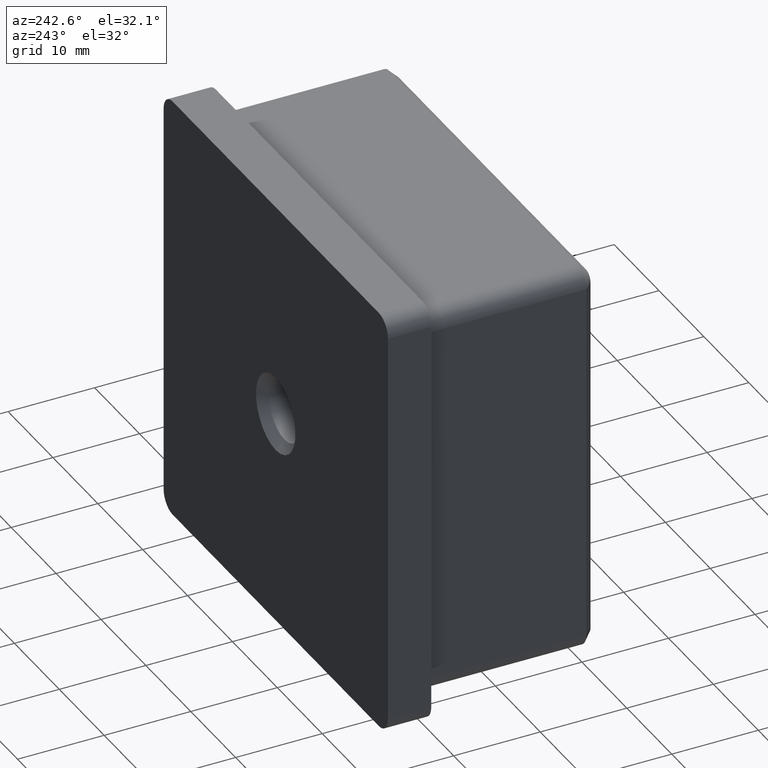
[diagram: clean part render]
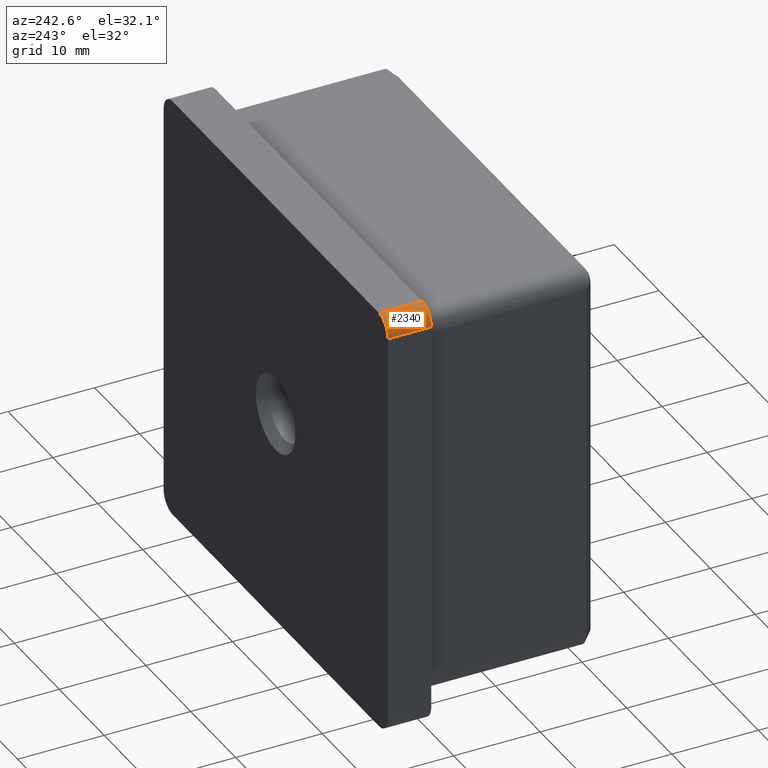
[diagram: same view with one face highlighted and labeled with its STEP entity id]
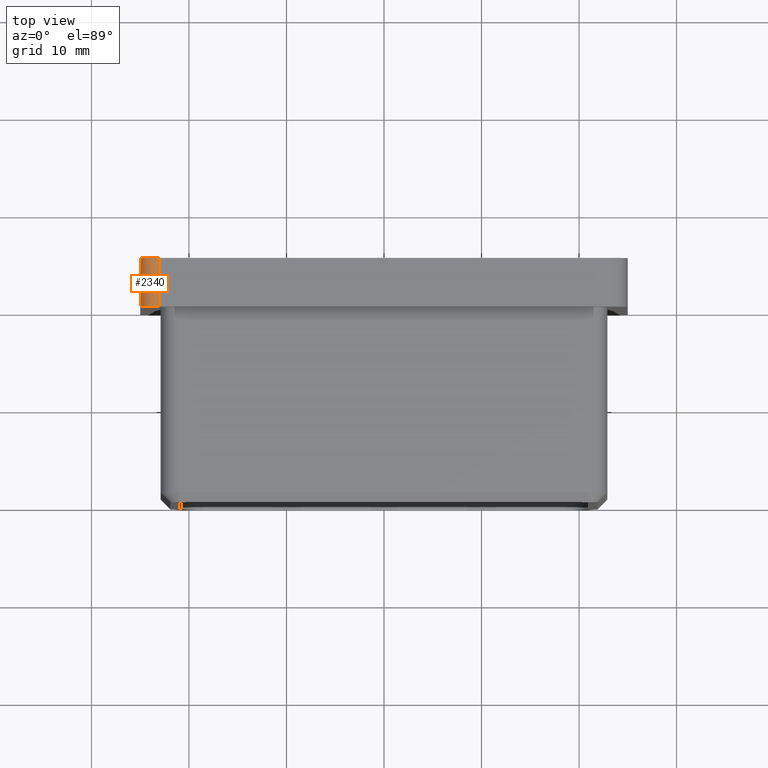
[diagram: same view with one face highlighted and labeled with its STEP entity id]
A machine part, auxiliary view. The second image highlights one B-rep face of the part: STEP entity #2340.
A second angle (top view) of the same face is appended — the face is thin or edge-on in the first view.
In plain terms, the highlighted cylindrical surface (edge-blend (fillet) strip) has radius 2 mm, axis along (0, -1, 0).
Its self-contained STEP definition (entity closure, byte-faithful):
#283 = VECTOR ( 'NONE', #14635, 1000.000000000000000 ) ;
#663 = DIRECTION ( 'NONE',  ( 0.0000000000000000000, 0.0000000000000000000, -1.000000000000000000 ) ) ;
#969 = CARTESIAN_POINT ( 'NONE',  ( -22.99999999999999300, 5.000000000000000000, 24.99999999999998600 ) ) ;
#1356 = LINE ( 'NONE', #3809, #283 ) ;
#1407 = LINE ( 'NONE', #969, #15656 ) ;
#1687 = VERTEX_POINT ( 'NONE', #16149 ) ;
#1812 = EDGE_CURVE ( 'NONE', #3569, #1687, #5575, .T. ) ;
#1892 = VERTEX_POINT ( 'NONE', #11486 ) ;
#2340 = ADVANCED_FACE ( 'NONE', ( #17377 ), #10914, .T. ) ;
#2434 = ORIENTED_EDGE ( 'NONE', *, *, #8356, .F. ) ;
#2583 = EDGE_CURVE ( 'NONE', #1687, #17779, #1407, .T. ) ;
#2933 = DIRECTION ( 'NONE',  ( 0.0000000000000000000, 1.000000000000000000, 0.0000000000000000000 ) ) ;
#3082 = ORIENTED_EDGE ( 'NONE', *, *, #2583, .F. ) ;
#3569 = VERTEX_POINT ( 'NONE', #4045 ) ;
#3809 = CARTESIAN_POINT ( 'NONE',  ( -24.99999999999998900, 5.000000000000000000, 22.99999999999998600 ) ) ;
#4045 = CARTESIAN_POINT ( 'NONE',  ( -24.99999999999998900, 5.000000000000000000, 22.99999999999998600 ) ) ;
#4050 = DIRECTION ( 'NONE',  ( -0.0000000000000000000, -1.000000000000000000, -0.0000000000000000000 ) ) ;
#4684 = EDGE_CURVE ( 'NONE', #17779, #1892, #7187, .T. ) ;
#5303 = CARTESIAN_POINT ( 'NONE',  ( -22.99999999999999300, 0.0000000000000000000, 22.99999999999998600 ) ) ;
#5420 = DIRECTION ( 'NONE',  ( 0.0000000000000000000, 0.0000000000000000000, 1.000000000000000000 ) ) ;
#5523 = AXIS2_PLACEMENT_3D ( 'NONE', #14088, #2933, #5740 ) ;
#5575 = CIRCLE ( 'NONE', #5523, 2.000000000000001800 ) ;
#5740 = DIRECTION ( 'NONE',  ( 0.0000000000000000000, 0.0000000000000000000, 1.000000000000000000 ) ) ;
#6097 = ORIENTED_EDGE ( 'NONE', *, *, #4684, .F. ) ;
#6362 = AXIS2_PLACEMENT_3D ( 'NONE', #5303, #4050, #5420 ) ;
#7187 = CIRCLE ( 'NONE', #6362, 2.000000000000001800 ) ;
#7720 = DIRECTION ( 'NONE',  ( 0.0000000000000000000, -1.000000000000000000, 0.0000000000000000000 ) ) ;
#8097 = AXIS2_PLACEMENT_3D ( 'NONE', #15365, #7720, #663 ) ;
#8356 = EDGE_CURVE ( 'NONE', #1892, #3569, #1356, .T. ) ;
#9245 = CARTESIAN_POINT ( 'NONE',  ( -22.99999999999999300, 0.0000000000000000000, 24.99999999999998600 ) ) ;
#10914 = CYLINDRICAL_SURFACE ( 'NONE', #8097, 2.000000000000001800 ) ;
#11486 = CARTESIAN_POINT ( 'NONE',  ( -24.99999999999998900, 0.0000000000000000000, 22.99999999999998600 ) ) ;
#13353 = EDGE_LOOP ( 'NONE', ( #16475, #2434, #6097, #3082 ) ) ;
#14088 = CARTESIAN_POINT ( 'NONE',  ( -22.99999999999999300, 5.000000000000000000, 22.99999999999998600 ) ) ;
#14635 = DIRECTION ( 'NONE',  ( -0.0000000000000000000, 1.000000000000000000, -0.0000000000000000000 ) ) ;
#15365 = CARTESIAN_POINT ( 'NONE',  ( -22.99999999999999300, 5.000000000000000000, 22.99999999999998600 ) ) ;
#15656 = VECTOR ( 'NONE', #16039, 1000.000000000000000 ) ;
#16039 = DIRECTION ( 'NONE',  ( 0.0000000000000000000, -1.000000000000000000, 0.0000000000000000000 ) ) ;
#16149 = CARTESIAN_POINT ( 'NONE',  ( -22.99999999999999300, 5.000000000000000000, 24.99999999999998600 ) ) ;
#16475 = ORIENTED_EDGE ( 'NONE', *, *, #1812, .F. ) ;
#17377 = FACE_OUTER_BOUND ( 'NONE', #13353, .T. ) ;
#17779 = VERTEX_POINT ( 'NONE', #9245 ) ;